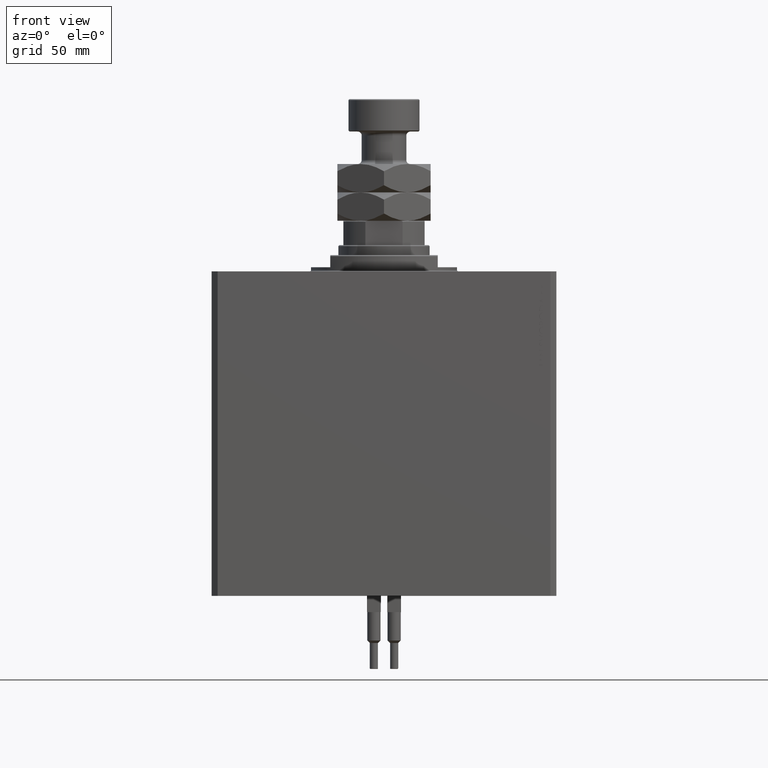
[diagram: clean part render]
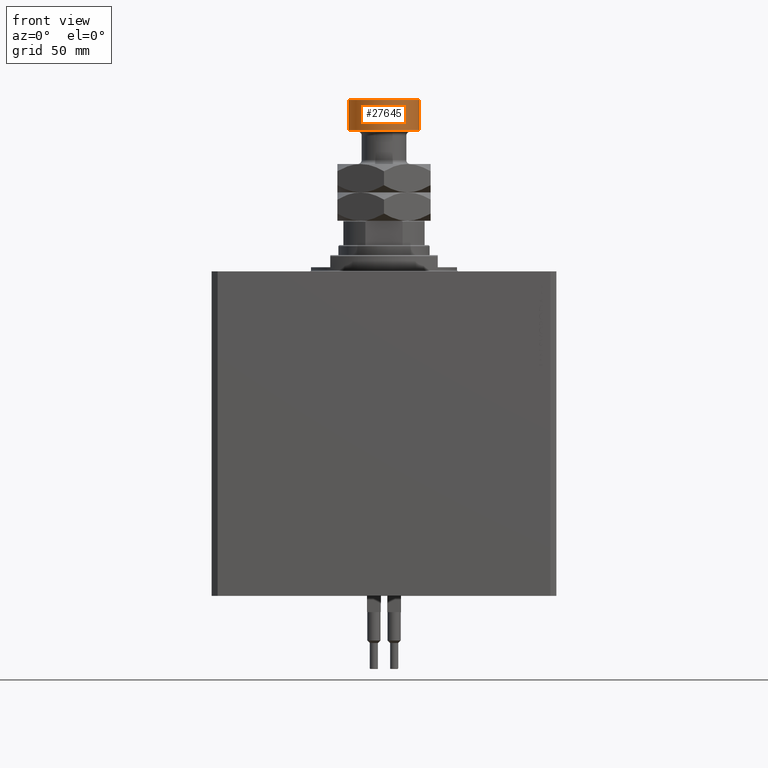
[diagram: same view with one face highlighted and labeled with its STEP entity id]
A machine part, front view. The second image highlights one B-rep face of the part: STEP entity #27645.
In plain terms, the highlighted cylindrical surface (edge-blend (fillet) strip) has radius 17.5 mm, axis along (-0, -0, -1).
Its self-contained STEP definition (entity closure, byte-faithful):
#729 = DIRECTION ( 'NONE',  ( -0.000000000000000000, -0.000000000000000000, -1.000000000000000000 ) ) ;
#1212 = AXIS2_PLACEMENT_3D ( 'NONE', #2952, #5978, #18320 ) ;
#1249 = EDGE_LOOP ( 'NONE', ( #29891, #31645, #6374, #18365 ) ) ;
#2148 = DIRECTION ( 'NONE',  ( -0.000000000000000000, -0.000000000000000000, -1.000000000000000000 ) ) ;
#2952 = CARTESIAN_POINT ( 'NONE',  ( 0.000000000000000000, 0.000000000000000000, 59.50000000000000000 ) ) ;
#4014 = FACE_OUTER_BOUND ( 'NONE', #1249, .T. ) ;
#5978 = DIRECTION ( 'NONE',  ( 0.000000000000000000, 0.000000000000000000, -1.000000000000000000 ) ) ;
#6374 = ORIENTED_EDGE ( 'NONE', *, *, #9228, .T. ) ;
#9228 = EDGE_CURVE ( 'NONE', #34496, #47454, #41241, .T. ) ;
#9461 = DIRECTION ( 'NONE',  ( 1.000000000000000000, 0.000000000000000000, 0.000000000000000000 ) ) ;
#14463 = DIRECTION ( 'NONE',  ( -0.000000000000000000, -0.000000000000000000, -1.000000000000000000 ) ) ;
#15853 = CARTESIAN_POINT ( 'NONE',  ( 0.000000000000000000, 0.000000000000000000, 60.00000000000000000 ) ) ;
#18217 = VERTEX_POINT ( 'NONE', #34155 ) ;
#18320 = DIRECTION ( 'NONE',  ( 1.000000000000000000, 0.000000000000000000, 0.000000000000000000 ) ) ;
#18365 = ORIENTED_EDGE ( 'NONE', *, *, #20735, .T. ) ;
#20462 = CARTESIAN_POINT ( 'NONE',  ( -17.50000000000000355, 0.000000000000000000, 44.50000000000000000 ) ) ;
#20735 = EDGE_CURVE ( 'NONE', #47454, #18217, #33535, .T. ) ;
#21367 = CIRCLE ( 'NONE', #1212, 17.50000000000000355 ) ;
#23577 = VECTOR ( 'NONE', #2148, 1000.000000000000000 ) ;
#25862 = DIRECTION ( 'NONE',  ( -0.000000000000000000, -0.000000000000000000, 1.000000000000000000 ) ) ;
#26106 = LINE ( 'NONE', #48840, #23577 ) ;
#27244 = DIRECTION ( 'NONE',  ( -1.000000000000000000, 0.000000000000000000, 0.000000000000000000 ) ) ;
#27645 = ADVANCED_FACE ( 'NONE', ( #4014 ), #42887, .T. ) ;
#28843 = VERTEX_POINT ( 'NONE', #29754 ) ;
#29444 = AXIS2_PLACEMENT_3D ( 'NONE', #15853, #729, #27244 ) ;
#29754 = CARTESIAN_POINT ( 'NONE',  ( 17.50000000000000355, 2.143131898507868643E-15, 59.50000000000000000 ) ) ;
#29891 = ORIENTED_EDGE ( 'NONE', *, *, #39774, .F. ) ;
#31645 = ORIENTED_EDGE ( 'NONE', *, *, #38300, .T. ) ;
#33535 = CIRCLE ( 'NONE', #45618, 17.50000000000000355 ) ;
#34070 = VECTOR ( 'NONE', #14463, 1000.000000000000000 ) ;
#34087 = CARTESIAN_POINT ( 'NONE',  ( -17.50000000000000355, 0.000000000000000000, 59.50000000000000000 ) ) ;
#34155 = CARTESIAN_POINT ( 'NONE',  ( 17.50000000000000355, 2.143131898507868643E-15, 44.50000000000000000 ) ) ;
#34496 = VERTEX_POINT ( 'NONE', #34087 ) ;
#38300 = EDGE_CURVE ( 'NONE', #28843, #34496, #21367, .T. ) ;
#39774 = EDGE_CURVE ( 'NONE', #28843, #18217, #26106, .T. ) ;
#41241 = LINE ( 'NONE', #49328, #34070 ) ;
#42887 = CYLINDRICAL_SURFACE ( 'NONE', #29444, 17.50000000000000355 ) ;
#45062 = CARTESIAN_POINT ( 'NONE',  ( 0.000000000000000000, 0.000000000000000000, 44.50000000000000000 ) ) ;
#45618 = AXIS2_PLACEMENT_3D ( 'NONE', #45062, #25862, #9461 ) ;
#47454 = VERTEX_POINT ( 'NONE', #20462 ) ;
#48840 = CARTESIAN_POINT ( 'NONE',  ( 17.50000000000000355, 2.143131898507868643E-15, 60.00000000000000000 ) ) ;
#49328 = CARTESIAN_POINT ( 'NONE',  ( -17.50000000000000355, 0.000000000000000000, 60.00000000000000000 ) ) ;